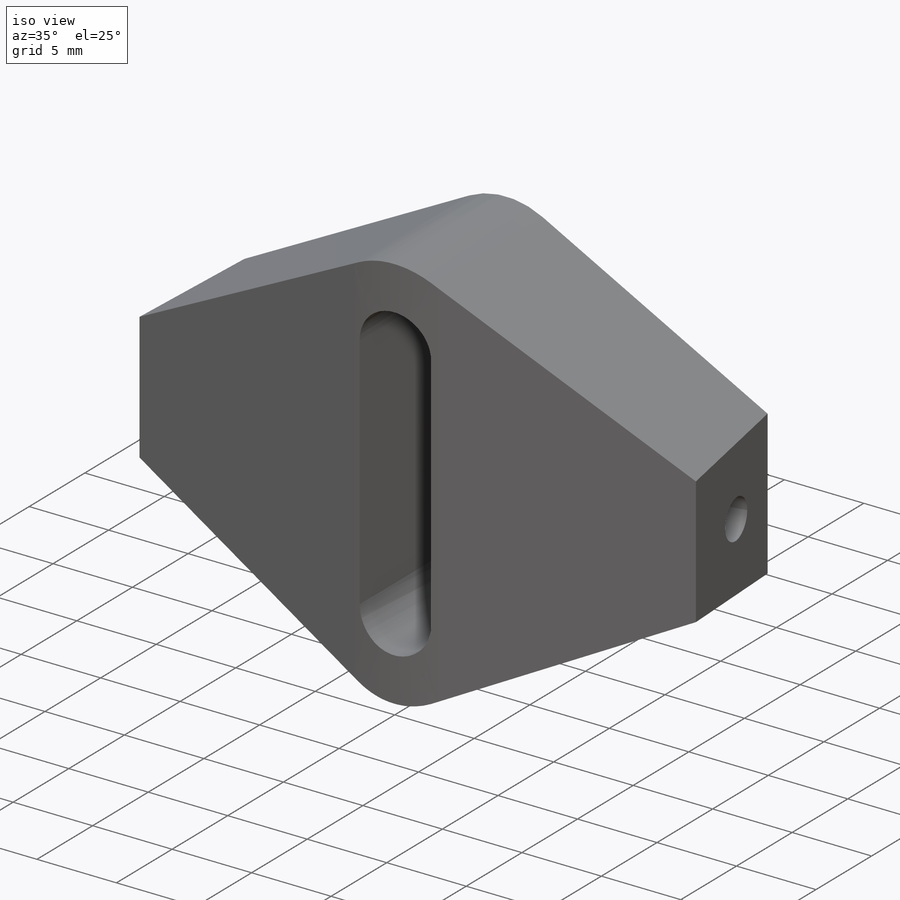
[diagram: iso view]
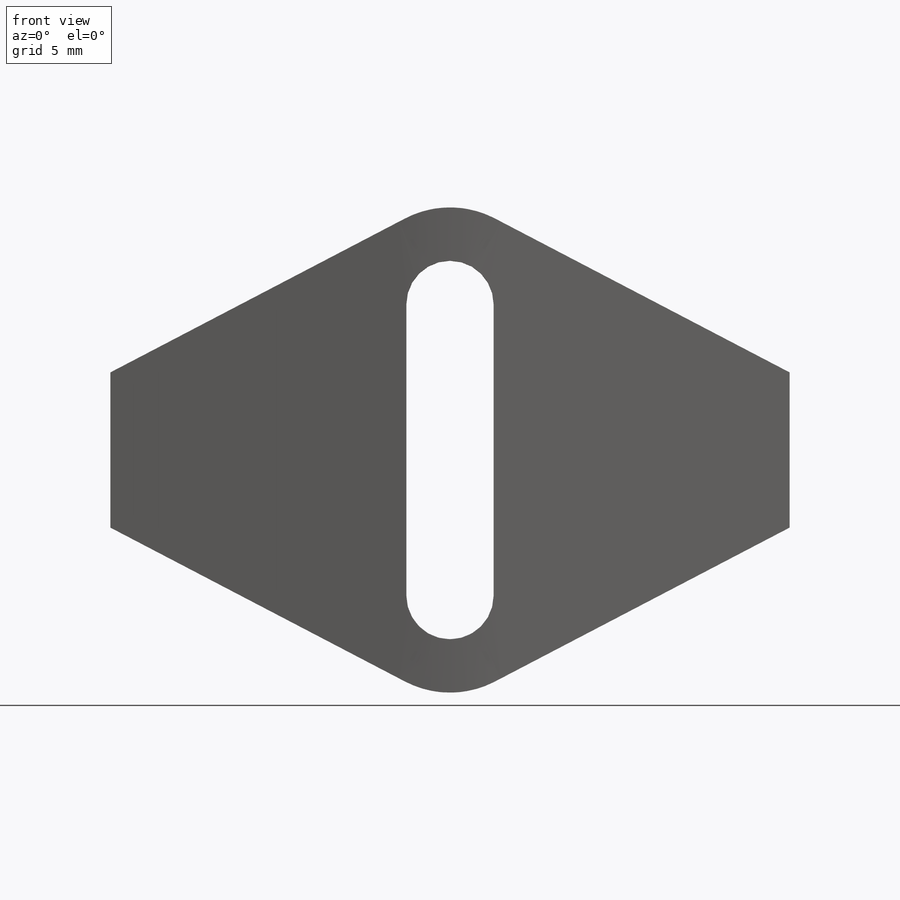
[diagram: front view]
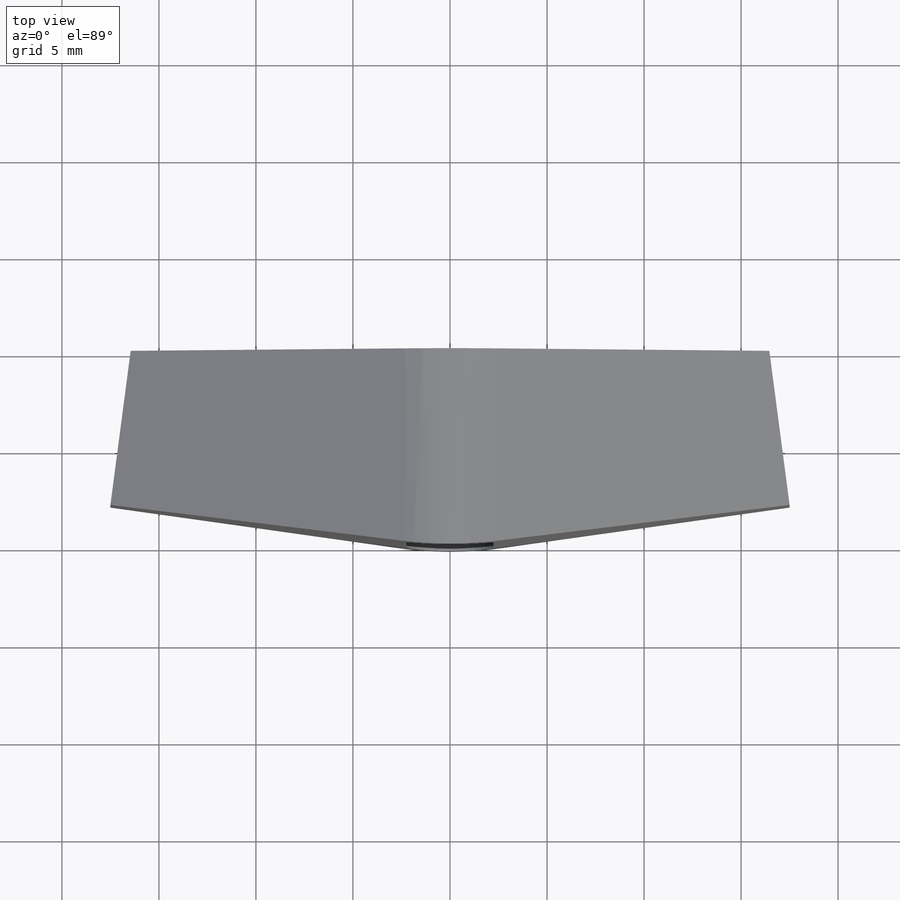
[diagram: top view]
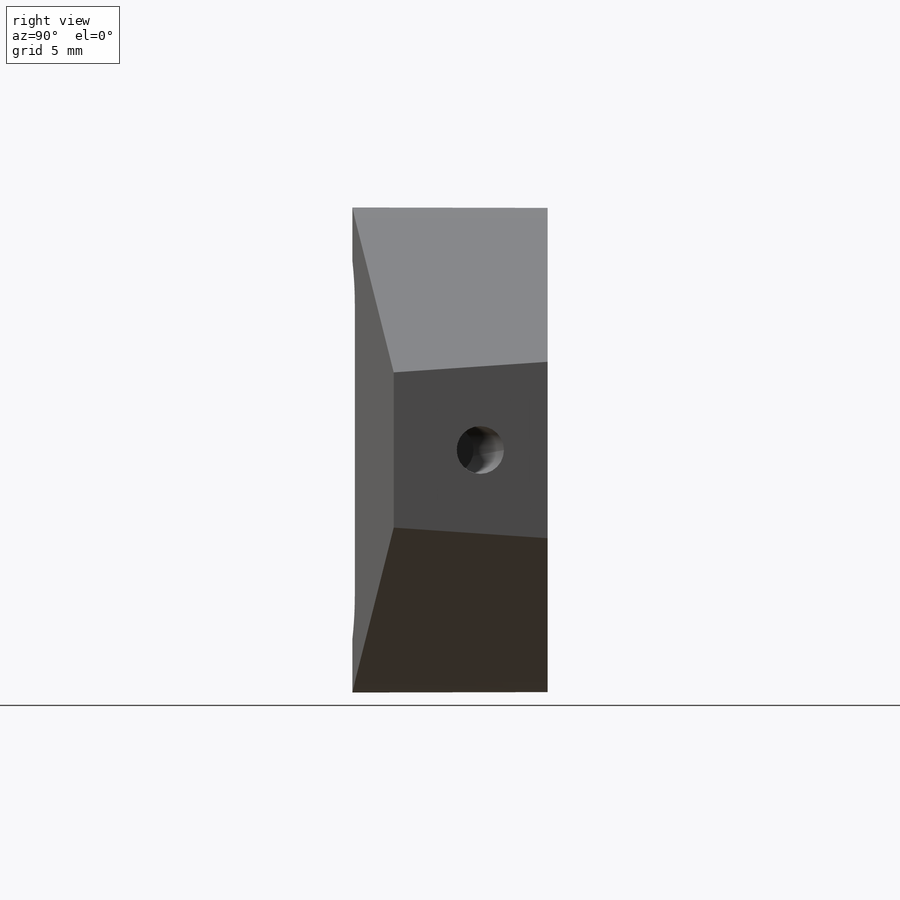
[diagram: right view]
SOLIDWORKS PART (.sldprt)
format: sldprt  version: not decoded by parser v0  size: 218,624 bytes
history: native  units: mm
features: plane x3, sketch x3, cut_extrude x2, material x1, extrude x1, mirror x1 (+9 scaffold rows collapsed)
feature tree (20):
  scaffold x9  (default folders/planes/origin — collapsed)
  material  "PVC hart"
  plane  "Ebene vorne"
  plane  "Ebene oben"
  plane  "Ebene rechts"
  sketch  "Skizze3"  dims[c1.D1=~8.005508mm c1.D2=2.25mm c1.D6=5.5mm c2.D1=4.5mm c2.D3=15.0mm c2.D4=8.0mm c2.D5=35.0mm c2.D2=4.0mm c2.D6=27.5mm c3.D2=25.0mm c3.D3=15.0mm]
  extrude  "Aufsatz-Linear austragen3"  Depth=20mm
  sketch  "Skizze10"  dims[c1.D3=20.0mm c1.D1=8.0mm c1.D2=7.0094mm c2.D2=165.0deg]
  cut_extrude  "Schnitt-Linear austragen9"  [1 undecoded]
  sketch  "Skizze7"  dims[D1=2.46mm D2=4.5mm D3=3.5mm]
  cut_extrude  "Schnitt-Linear austragen8"  Depth=12mm
  mirror  "Spiegeln4"
decode coverage: 5 of 7 modeling features carry decoded parameters
note: ~ marks probable driven/reference dimensions
note: 1 parameter value undecoded
note: suppression state not decoded; provenance and decode notes live in map.json
